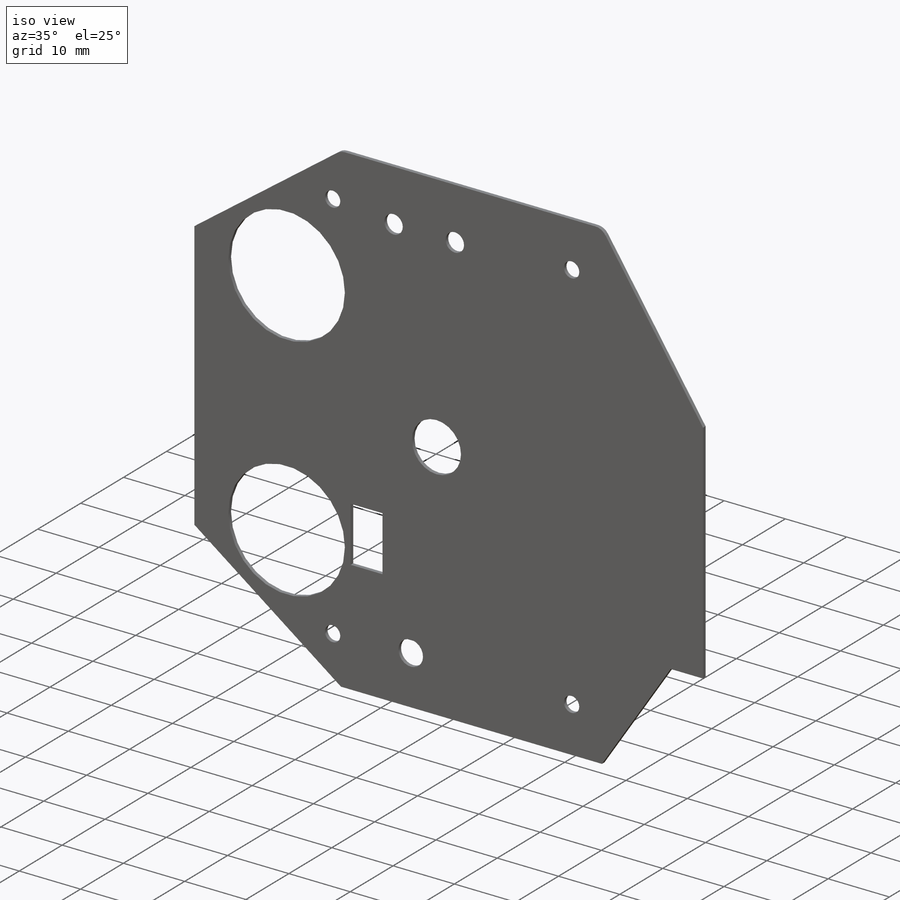
[diagram: iso view]
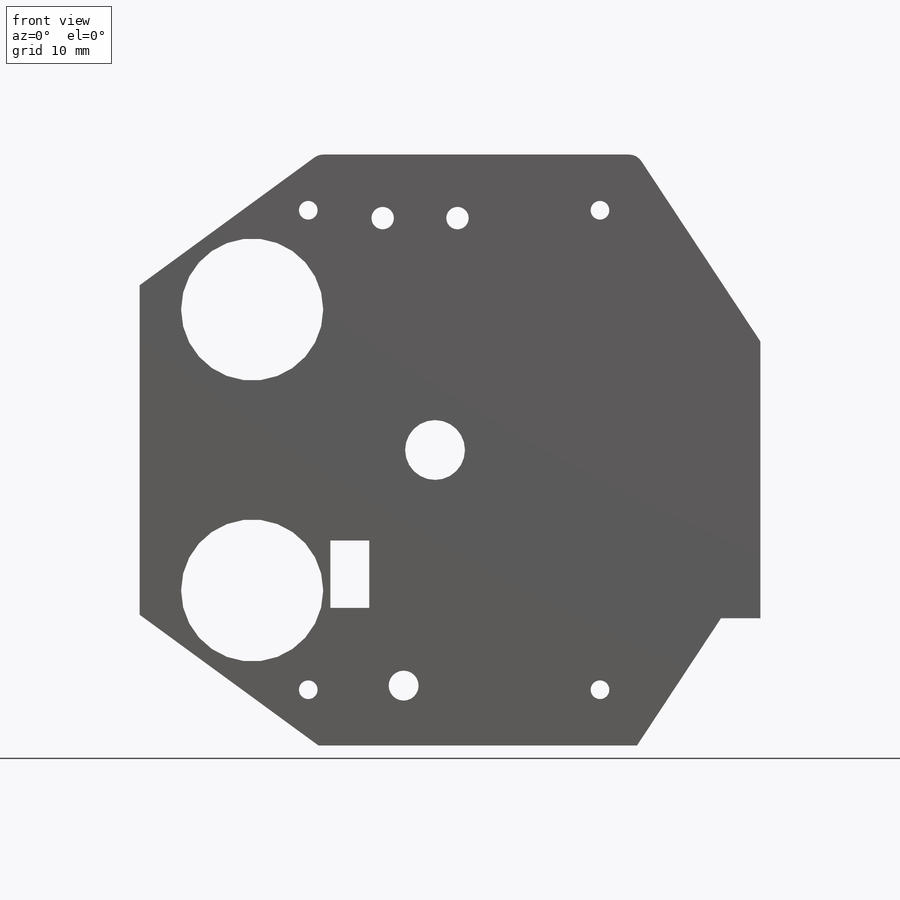
[diagram: front view]
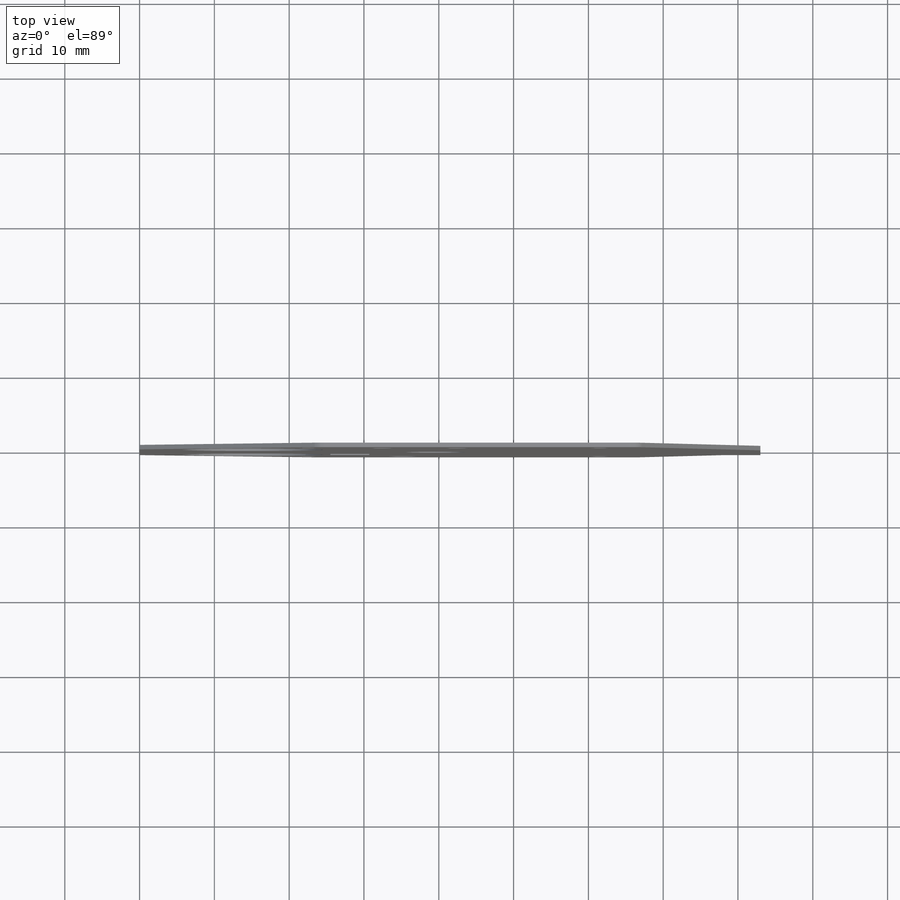
[diagram: top view]
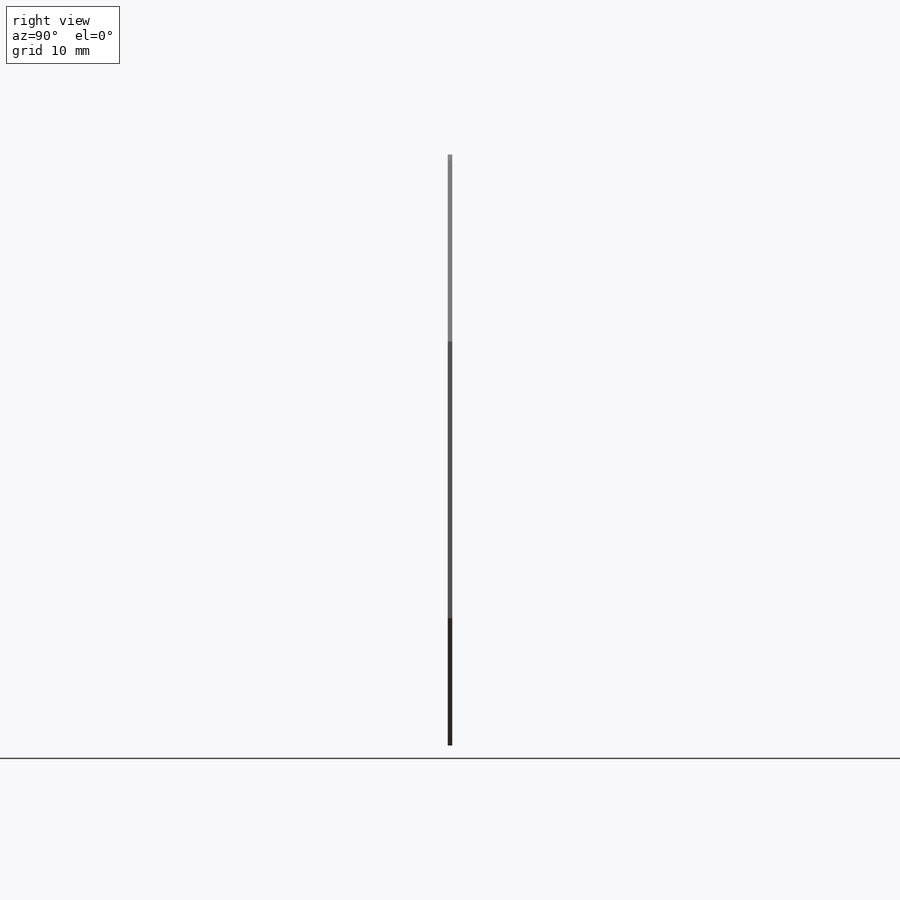
[diagram: right view]
SOLIDWORKS PART (.sldprt)
format: sldprt  version: not decoded by parser v0  size: 439,296 bytes
history: native  units: mm
features: plane x3, sketch x3, extrude x2, material x1, cut_extrude x1 (+8 scaffold rows collapsed)
feature tree (18):
  scaffold x8  (default folders/planes/origin — collapsed)
  material  "Matériau <non spécifié>"
  plane  "Plan de face"
  plane  "Plan de dessus"
  plane  "Plan de droite"
  sketch  "Esquisse3"  dims[c1.D7=19.0mm c1.D10=8.0mm c1.D12=2.5mm c1.D15=2.5mm c1.D11=2.0mm c1.D1=39.5mm c1.D2=83.0mm c1.D3=~67.99468mm c2.D1=44.5mm c2.D3=22.0mm c2.D4=25.0mm c2.D5=17.0mm c2.D6=39.5mm c2.D8=12.5mm c2.D9=11.5mm c2.D11=35.5mm c2.D13=4.75mm c2.D14=7.25mm c3.D6=39.5mm c3.D15=83.0mm c3.D5=39.5mm c3.D3=39.0mm c3.D13=32.05mm]
  extrude  "Extrusion1"  Depth=0.6mm
  sketch  "Esquisse4"  dims[D1=37.0mm]
  extrude  "Extrusion2"  Depth=0.6mm
  sketch  "Esquisse5"  dims[c1.D1=3.0mm c1.D4=3.0mm c1.D8=4.0mm c1.D9=2.5mm c1.D2=8.5mm c1.D3=~11.364221mm c2.D3=90.0deg c3.D3=32.5mm c3.D4=9.0mm c3.D5=5.2mm c3.D6=18.4mm c3.D7=25.5mm c3.D9=8.0mm c3.D10=~11.132917mm c4.D9=12.75mm c4.D10=~12.77204mm c5.D9=12.75mm c5.D10=8.0mm]
  cut_extrude  "Extrusion3"  Depth=0.6mm
decode coverage: 6 of 6 modeling features carry decoded parameters
note: ~ marks probable driven/reference dimensions
note: suppression state not decoded; provenance and decode notes live in map.json
